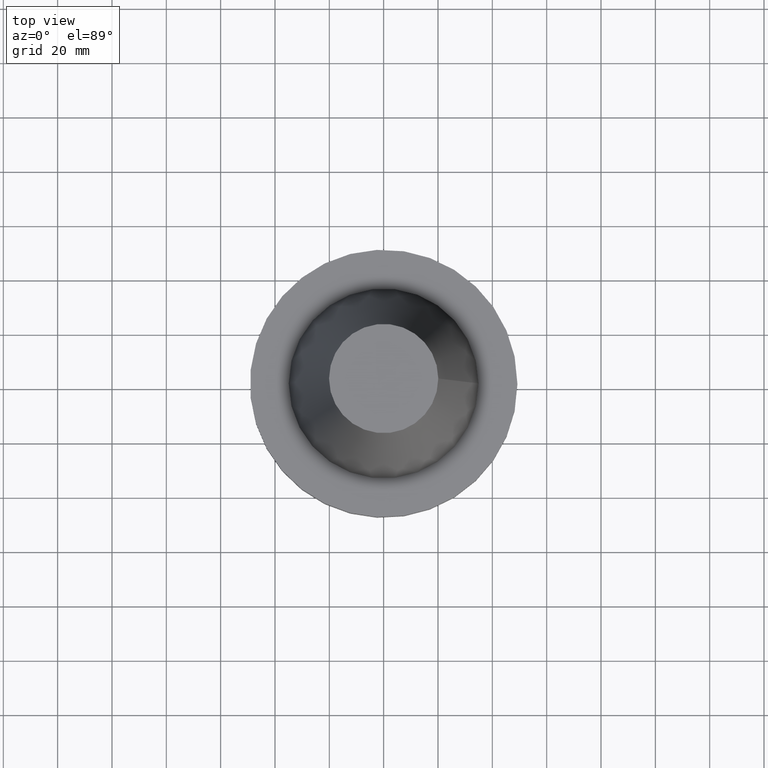
[diagram: clean part render]
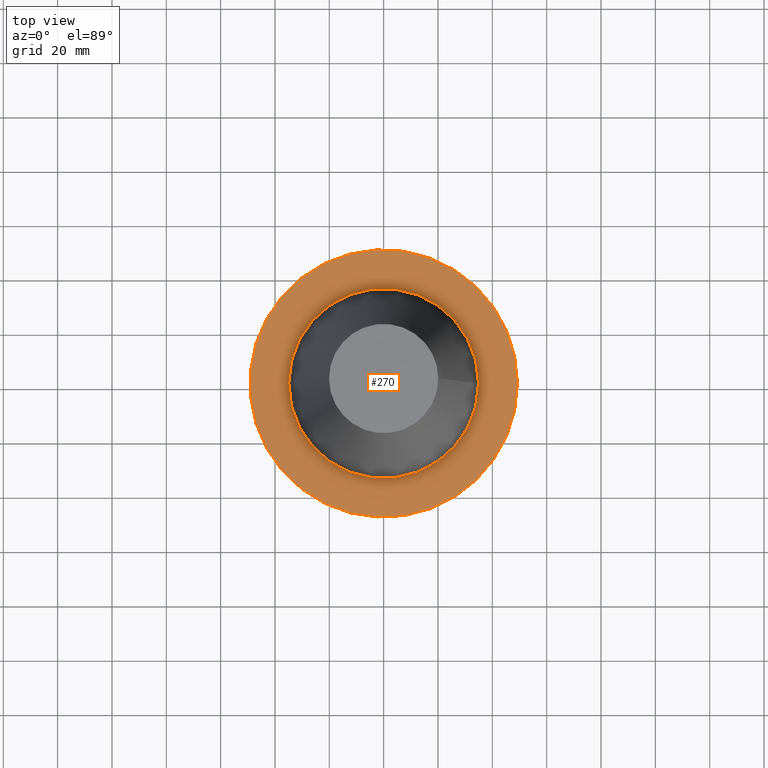
[diagram: same view with one face highlighted and labeled with its STEP entity id]
A machine part, top view. The second image highlights one B-rep face of the part: STEP entity #270.
In plain terms, the highlighted planar face has unit normal (0, 0, -1).
Its self-contained STEP definition (entity closure, byte-faithful):
#12 = CIRCLE ( 'NONE', #74, 49.21499999999999631 ) ;
#31 = DIRECTION ( 'NONE',  ( 0.000000000000000000, 0.000000000000000000, -1.000000000000000000 ) ) ;
#74 = AXIS2_PLACEMENT_3D ( 'NONE', #99, #378, #192 ) ;
#76 = VERTEX_POINT ( 'NONE', #228 ) ;
#81 = EDGE_CURVE ( 'NONE', #76, #76, #132, .T. ) ;
#82 = FACE_OUTER_BOUND ( 'NONE', #164, .T. ) ;
#94 = VERTEX_POINT ( 'NONE', #338 ) ;
#99 = CARTESIAN_POINT ( 'NONE',  ( 0.000000000000000000, 0.000000000000000000, -1.499999999999987566 ) ) ;
#105 = DIRECTION ( 'NONE',  ( -0.000000000000000000, -0.000000000000000000, 1.000000000000000000 ) ) ;
#113 = AXIS2_PLACEMENT_3D ( 'NONE', #197, #105, #356 ) ;
#132 = CIRCLE ( 'NONE', #113, 34.92499999999999005 ) ;
#164 = EDGE_LOOP ( 'NONE', ( #203 ) ) ;
#177 = FACE_BOUND ( 'NONE', #347, .T. ) ;
#192 = DIRECTION ( 'NONE',  ( 1.000000000000000000, 0.000000000000000000, 0.000000000000000000 ) ) ;
#197 = CARTESIAN_POINT ( 'NONE',  ( 0.000000000000000000, 0.000000000000000000, -1.499999999999987566 ) ) ;
#203 = ORIENTED_EDGE ( 'NONE', *, *, #381, .T. ) ;
#228 = CARTESIAN_POINT ( 'NONE',  ( 34.92499999999999005, 0.000000000000000000, -1.499999999999987566 ) ) ;
#236 = ORIENTED_EDGE ( 'NONE', *, *, #81, .F. ) ;
#237 = CARTESIAN_POINT ( 'NONE',  ( 0.000000000000000000, 49.21499999999999631, -1.499999999999992895 ) ) ;
#240 = PLANE ( 'NONE',  #262 ) ;
#262 = AXIS2_PLACEMENT_3D ( 'NONE', #237, #31, #339 ) ;
#270 = ADVANCED_FACE ( 'NONE', ( #177, #82 ), #240, .F. ) ;
#338 = CARTESIAN_POINT ( 'NONE',  ( 49.21499999999999631, 0.000000000000000000, -1.499999999999987566 ) ) ;
#339 = DIRECTION ( 'NONE',  ( -1.000000000000000000, 0.000000000000000000, -0.000000000000000000 ) ) ;
#347 = EDGE_LOOP ( 'NONE', ( #236 ) ) ;
#356 = DIRECTION ( 'NONE',  ( 1.000000000000000000, 0.000000000000000000, 0.000000000000000000 ) ) ;
#378 = DIRECTION ( 'NONE',  ( -0.000000000000000000, -0.000000000000000000, 1.000000000000000000 ) ) ;
#381 = EDGE_CURVE ( 'NONE', #94, #94, #12, .T. ) ;